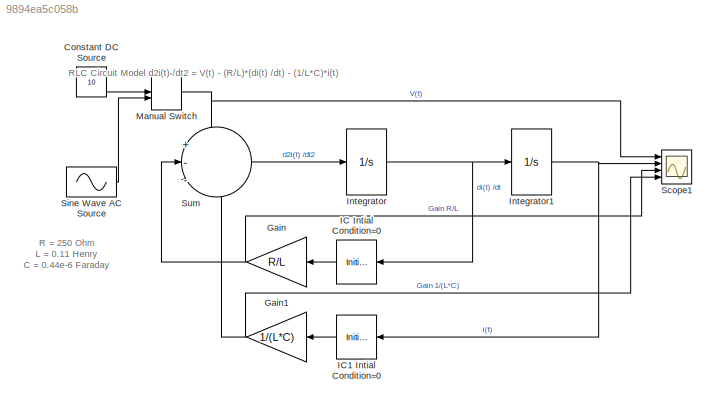
MODEL slx_9894ea5c058b
KIND model
CONFIG AbsTol = auto
CONFIG FixedStep = 1e-6
CONFIG MaxStep = auto
CONFIG MinStep = auto
CONFIG RelTol = 1e-3
CONFIG SampleTimeConstraint = Unconstrained
CONFIG Solver = FixedStepAuto
CONFIG SolverMode = Auto
CONFIG SolverName = FixedStepAuto
CONFIG StartTime = 0.0
CONFIG StopTime = 0.006
BLOCK [Constant] Constant DC Source
  Value = 10
BLOCK [Gain] Gain
  Gain = R/L
  OutDataTypeStr = Inherit: Inherit via internal rule
  ParamDataTypeStr = Inherit: Inherit via internal rule
  SaturateOnIntegerOverflow = off
BLOCK [Gain] Gain1
  Gain = 1/(L*C)
  OutDataTypeStr = Inherit: Inherit via internal rule
  ParamDataTypeStr = Inherit: Inherit via internal rule
  SaturateOnIntegerOverflow = off
BLOCK [InitialCondition] IC  Intial Condition=0
  Value = 0
BLOCK [InitialCondition] IC1  Intial Condition=0
  Value = 0
BLOCK [Integrator] Integrator
  Ports = [1, 1]
BLOCK [Integrator] Integrator1
  Ports = [1, 1]
BLOCK [ManualSwitch] Manual Switch
BLOCK [Scope] Scope1
  NumInputPorts = 4
  Ports = [4]
  ScopeSpecificationString = Simulink.scopes.TimeScopeBlockCfg('CurrentConfiguration', extmgr.ConfigurationSet(extmgr.Configuration('Core','General UI',true),extmgr.Configuration('Core','Source UI',true),extmgr.Configuration('Sources','WiredSimulink',true,'DataLoggingVariableName','ScopeData1'),extmgr.Configuration('Visuals','Time Domain',true,'SerializedDisplays',{struct('MinYLimReal','9.00000','MaxYLimReal','11.00000','YLab...<+3475ch>
BLOCK [Sin] Sine Wave AC Source
  Frequency = 10
  Ports = [0, 1]
  SampleTime = 0
BLOCK [Sum] Sum
  IconShape = round
  InputSameDT = off
  Inputs = +--
  OutDataTypeStr = Inherit: Inherit via internal rule
  Ports = [3, 1]
  SaturateOnIntegerOverflow = off
ANNOTATION (root): R = 250 Ohm L = 0.11 Henry C = 0.44e-6 Faraday
ANNOTATION (root): RLC Circuit Model d2i(t) /dt2 = V(t) - (R/L)*(di(t) /dt) - (1/L*C)*i(t)
LINE Constant DC Source:1 -> Manual Switch:1
NET Gain1:1 -> Scope1:4, Sum:3
NET Gain:1 -> Scope1:3, Sum:2
LINE IC  Intial Condition=0:1 -> Gain:1
LINE IC1  Intial Condition=0:1 -> Gain1:1
NET Integrator1:1 -> IC1  Intial Condition=0:1, Scope1:2
NET Integrator:1 -> IC  Intial Condition=0:1, Integrator1:1
NET Manual Switch:1 -> Scope1:1, Sum:1
LINE Sine Wave AC Source:1 -> Manual Switch:2
LINE Sum:1 -> Integrator:1
note: NET lines group one-source signal fan-out (src -> all destinations, sorted); 1:1 wires keep LINE
